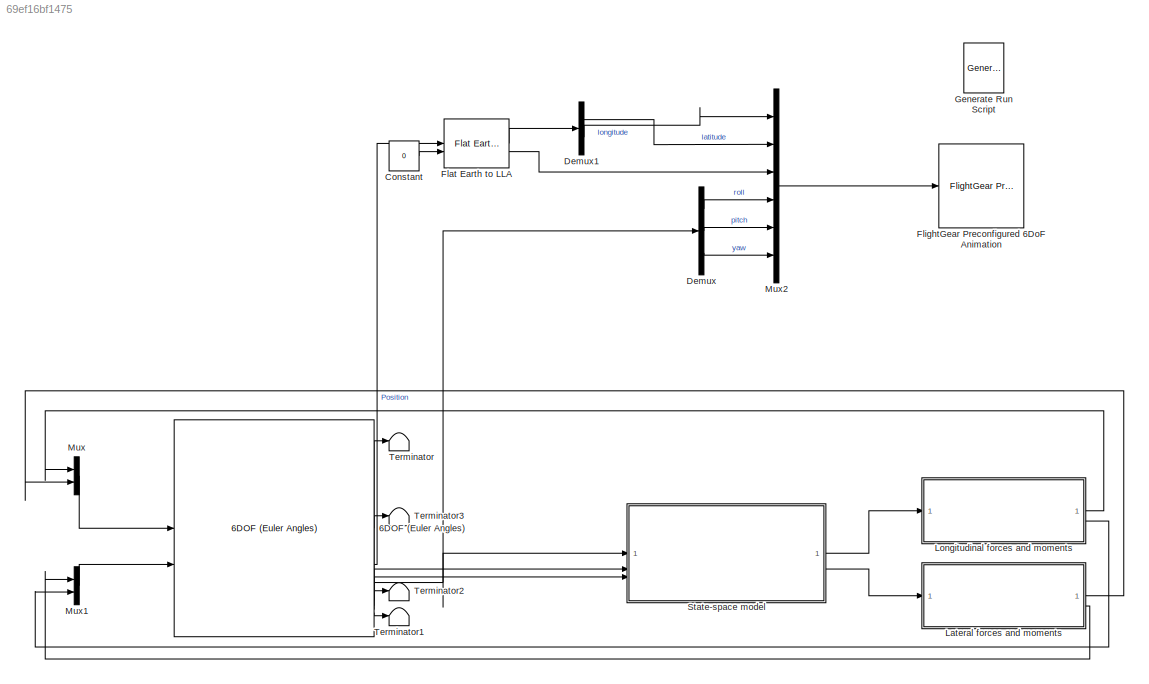
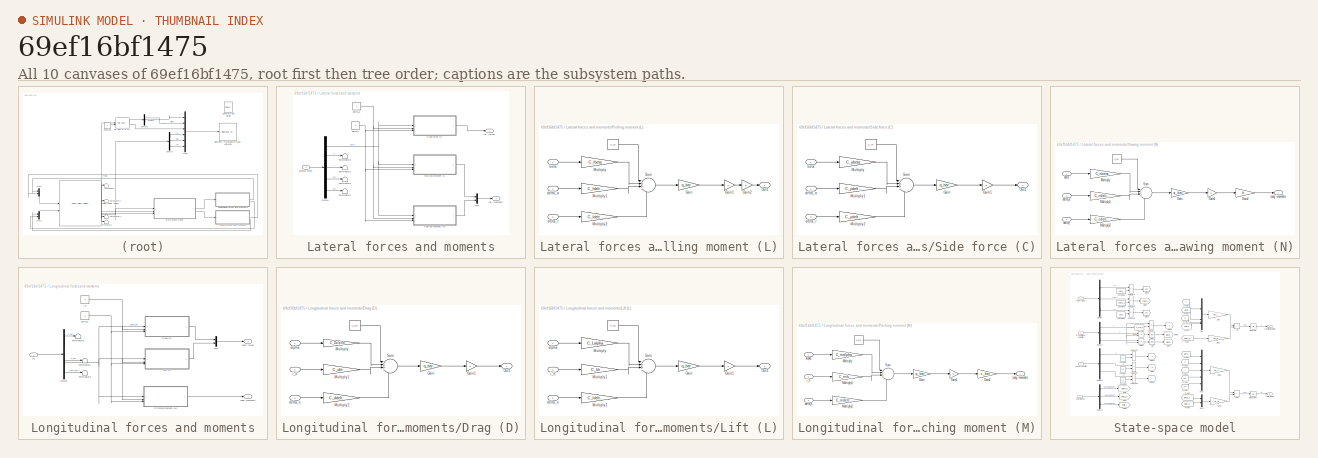
[diagram: thumbnail index - all 10 canvases of the model, root first then tree order]
MODEL slx_69ef16bf1475
KIND model
CONFIG AbsTol = auto
CONFIG EnableMultiTasking = off
CONFIG FixedStep = auto
CONFIG MaxStep = auto
CONFIG MinStep = auto
CONFIG RelTol = 1e-3
CONFIG SampleTimeConstraint = Unconstrained
CONFIG SolverName = VariableStepAuto
CONFIG StartTime = 0.0
CONFIG StopTime = 10.0
WORKSPACE source: external: MAT-File  (data not in archive)
BLOCK [Reference] 6DOF (Euler Angles)  REF=shared6dof/6DOF (Euler Angles)
  LibrarySourceBlock = aerolib6dof2/6DOF (Euler Angles)
  SourceBlock = shared6dof/6DOF (Euler Angles)
  SourceType = 6DOF EoM (Body Axis)
BLOCK [Constant] Constant
  Value = 0
BLOCK [Demux] Demux
  Outputs = 3
BLOCK [Demux] Demux1
  Outputs = 2
BLOCK [Reference] Flat Earth to LLA  REF=aerolibtransform2/Flat Earth to LLA
  SourceBlock = aerolibtransform2/Flat Earth to LLA
  SourceType = Flat Earth to LLA
BLOCK [Reference] FlightGear Preconfigured 6DoF Animation  REF=aerolibfltsims/FlightGear
Preconfigured
6DoF Animation
  SourceBlock = aerolibfltsims/FlightGear\nPreconfigured\n6DoF Animation
  SourceType = FlightGearQuick6DoFAnimation
BLOCK [Reference] Generate Run Script  REF=aerolibfltsims/Generate
Run Script
  SourceBlock = aerolibfltsims/Generate\nRun Script
  SourceType = Generate FlightGear Run Script
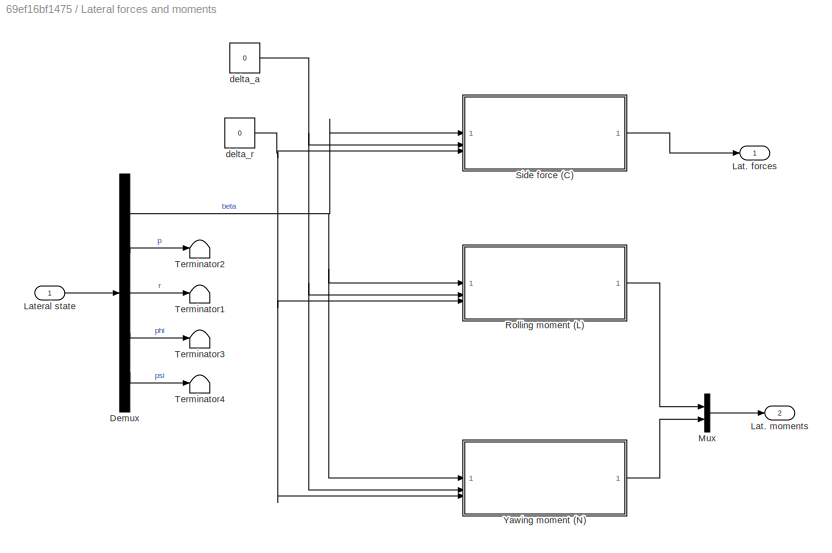
BLOCK [SubSystem] Lateral forces and moments
BLOCK [Demux] Lateral forces and moments/Demux
  Outputs = 5
BLOCK [Outport] Lateral forces and moments/Lat. forces
BLOCK [Outport] Lateral forces and moments/Lat. moments
  Port = 2
BLOCK [Inport] Lateral forces and moments/Lateral state
BLOCK [Mux] Lateral forces and moments/Mux
  DisplayOption = bar
  Inputs = 2
BLOCK [SubSystem] Lateral forces and moments/Rolling moment (L)
BLOCK [Constant] Lateral forces and moments/Rolling moment (L)/ 
  Value = C_L0
BLOCK [Gain] Lateral forces and moments/Rolling moment (L)/Gain
  Gain = q_bar
BLOCK [Gain] Lateral forces and moments/Rolling moment (L)/Gain1
  Gain = S
BLOCK [Gain] Lateral forces and moments/Rolling moment (L)/Gain2
  Gain = b
BLOCK [Gain] Lateral forces and moments/Rolling moment (L)/Multiply
  Gain = C_lbeta
BLOCK [Gain] Lateral forces and moments/Rolling moment (L)/Multiply1
  Gain = C_ldelta_a
BLOCK [Gain] Lateral forces and moments/Rolling moment (L)/Multiply2
  Gain = C_ldelta_r
BLOCK [Outport] Lateral forces and moments/Rolling moment (L)/Out1
BLOCK [Sum] Lateral forces and moments/Rolling moment (L)/Sum
  Inputs = |++++
BLOCK [Inport] Lateral forces and moments/Rolling moment (L)/beta
BLOCK [Inport] Lateral forces and moments/Rolling moment (L)/delta_a
  Port = 2
BLOCK [Inport] Lateral forces and moments/Rolling moment (L)/delta_r
  Port = 3
BLOCK [SubSystem] Lateral forces and moments/Side force (C)
BLOCK [Constant] Lateral forces and moments/Side force (C)/ 
  Value = C_y0
BLOCK [Gain] Lateral forces and moments/Side force (C)/Gain
  Gain = q_bar
BLOCK [Gain] Lateral forces and moments/Side force (C)/Gain1
  Gain = S
BLOCK [Gain] Lateral forces and moments/Side force (C)/Multiply
  Gain = C_ybeta
BLOCK [Gain] Lateral forces and moments/Side force (C)/Multiply1
  Gain = C_ydelta_a
BLOCK [Gain] Lateral forces and moments/Side force (C)/Multiply2
  Gain = C_ydelta_r
BLOCK [Outport] Lateral forces and moments/Side force (C)/Out1
BLOCK [Sum] Lateral forces and moments/Side force (C)/Sum
  Inputs = |++++
BLOCK [Inport] Lateral forces and moments/Side force (C)/beta
BLOCK [Inport] Lateral forces and moments/Side force (C)/delta_a
  Port = 2
BLOCK [Inport] Lateral forces and moments/Side force (C)/delta_r
  Port = 3
BLOCK [Terminator] Lateral forces and moments/Terminator1
BLOCK [Terminator] Lateral forces and moments/Terminator2
BLOCK [Terminator] Lateral forces and moments/Terminator3
BLOCK [Terminator] Lateral forces and moments/Terminator4
BLOCK [SubSystem] Lateral forces and moments/Yawing moment (N)
BLOCK [Constant] Lateral forces and moments/Yawing moment (N)/ 
  Value = C_n0
BLOCK [Gain] Lateral forces and moments/Yawing moment (N)/Gain
  Gain = q_bar
BLOCK [Gain] Lateral forces and moments/Yawing moment (N)/Gain1
  Gain = S
BLOCK [Gain] Lateral forces and moments/Yawing moment (N)/Gain2
  Gain = b
BLOCK [Outport] Lateral forces and moments/Yawing moment (N)/Long. moments
BLOCK [Gain] Lateral forces and moments/Yawing moment (N)/Multiply
  Gain = C_nbeta
BLOCK [Gain] Lateral forces and moments/Yawing moment (N)/Multiply1
  Gain = C_ndelta_a
BLOCK [Gain] Lateral forces and moments/Yawing moment (N)/Multiply2
  Gain = C_ndelta_r
BLOCK [Sum] Lateral forces and moments/Yawing moment (N)/Sum
  Inputs = |++++
BLOCK [Inport] Lateral forces and moments/Yawing moment (N)/beta
BLOCK [Inport] Lateral forces and moments/Yawing moment (N)/delta_a
  Port = 2
BLOCK [Inport] Lateral forces and moments/Yawing moment (N)/delta_r
  Port = 3
BLOCK [Constant] Lateral forces and moments/delta_a
  Value = 0
BLOCK [Constant] Lateral forces and moments/delta_r
  Value = 0
BLOCK [SubSystem] Longitudinal forces and moments
BLOCK [Demux] Longitudinal forces and moments/Demux
BLOCK [SubSystem] Longitudinal forces and moments/Drag (D)
BLOCK [Constant] Longitudinal forces and moments/Drag (D)/ 
  Value = C_D0
BLOCK [Gain] Longitudinal forces and moments/Drag (D)/Gain
  Gain = q_bar
BLOCK [Gain] Longitudinal forces and moments/Drag (D)/Gain1
  Gain = S
BLOCK [Gain] Longitudinal forces and moments/Drag (D)/Multiply
  Gain = C_Dalpha
BLOCK [Gain] Longitudinal forces and moments/Drag (D)/Multiply1
  Gain = C_dih
BLOCK [Gain] Longitudinal forces and moments/Drag (D)/Multiply2
  Gain = C_ddelta_e
BLOCK [Outport] Longitudinal forces and moments/Drag (D)/Out1
BLOCK [Sum] Longitudinal forces and moments/Drag (D)/Sum
  Inputs = |++++
BLOCK [Inport] Longitudinal forces and moments/Drag (D)/alpha
BLOCK [Inport] Longitudinal forces and moments/Drag (D)/delta_e
  Port = 3
BLOCK [Inport] Longitudinal forces and moments/Drag (D)/i_h
  Port = 2
BLOCK [Inport] Longitudinal forces and moments/In1
BLOCK [SubSystem] Longitudinal forces and moments/Lift (L)
BLOCK [Constant] Longitudinal forces and moments/Lift (L)/ 
  Value = C_L0
BLOCK [Gain] Longitudinal forces and moments/Lift (L)/Gain
  Gain = q_bar
BLOCK [Gain] Longitudinal forces and moments/Lift (L)/Gain1
  Gain = S
BLOCK [Gain] Longitudinal forces and moments/Lift (L)/Multiply
  Gain = C_Lalpha
BLOCK [Gain] Longitudinal forces and moments/Lift (L)/Multiply1
  Gain = C_lih
BLOCK [Gain] Longitudinal forces and moments/Lift (L)/Multiply2
  Gain = C_ldelta_e
BLOCK [Outport] Longitudinal forces and moments/Lift (L)/Out1
BLOCK [Sum] Longitudinal forces and moments/Lift (L)/Sum
  Inputs = |++++
BLOCK [Inport] Longitudinal forces and moments/Lift (L)/alpha
BLOCK [Inport] Longitudinal forces and moments/Lift (L)/delta_e
  Port = 3
BLOCK [Inport] Longitudinal forces and moments/Lift (L)/i_h
  Port = 2
BLOCK [Outport] Longitudinal forces and moments/Long. forces
BLOCK [Outport] Longitudinal forces and moments/Long. moments
  Port = 2
BLOCK [Mux] Longitudinal forces and moments/Mux
  DisplayOption = bar
  Inputs = 2
BLOCK [SubSystem] Longitudinal forces and moments/Pitching moment (M)
BLOCK [Constant] Longitudinal forces and moments/Pitching moment (M)/ 
  Value = C_m0
BLOCK [Gain] Longitudinal forces and moments/Pitching moment (M)/Gain
  Gain = q_bar
BLOCK [Gain] Longitudinal forces and moments/Pitching moment (M)/Gain1
  Gain = S
BLOCK [Gain] Longitudinal forces and moments/Pitching moment (M)/Gain2
  Gain = c_bar
BLOCK [Outport] Longitudinal forces and moments/Pitching moment (M)/Long. moments
BLOCK [Gain] Longitudinal forces and moments/Pitching moment (M)/Multiply
  Gain = C_malpha
BLOCK [Gain] Longitudinal forces and moments/Pitching moment (M)/Multiply1
  Gain = C_mih
BLOCK [Gain] Longitudinal forces and moments/Pitching moment (M)/Multiply2
  Gain = C_mdelta_e
BLOCK [Sum] Longitudinal forces and moments/Pitching moment (M)/Sum
  Inputs = |++++
BLOCK [Inport] Longitudinal forces and moments/Pitching moment (M)/alpha
BLOCK [Inport] Longitudinal forces and moments/Pitching moment (M)/delta_e
  Port = 3
BLOCK [Inport] Longitudinal forces and moments/Pitching moment (M)/i_h
  Port = 2
BLOCK [Terminator] Longitudinal forces and moments/Terminator1
BLOCK [Terminator] Longitudinal forces and moments/Terminator2
BLOCK [Terminator] Longitudinal forces and moments/Terminator3
BLOCK [Constant] Longitudinal forces and moments/delta_e
  Value = 0
BLOCK [Constant] Longitudinal forces and moments/i_h
  Value = 0
BLOCK [Mux] Mux
  DisplayOption = bar
  Inputs = 2
BLOCK [Mux] Mux1
  DisplayOption = bar
  Inputs = 2
BLOCK [Mux] Mux2
  DisplayOption = bar
  Inputs = 6
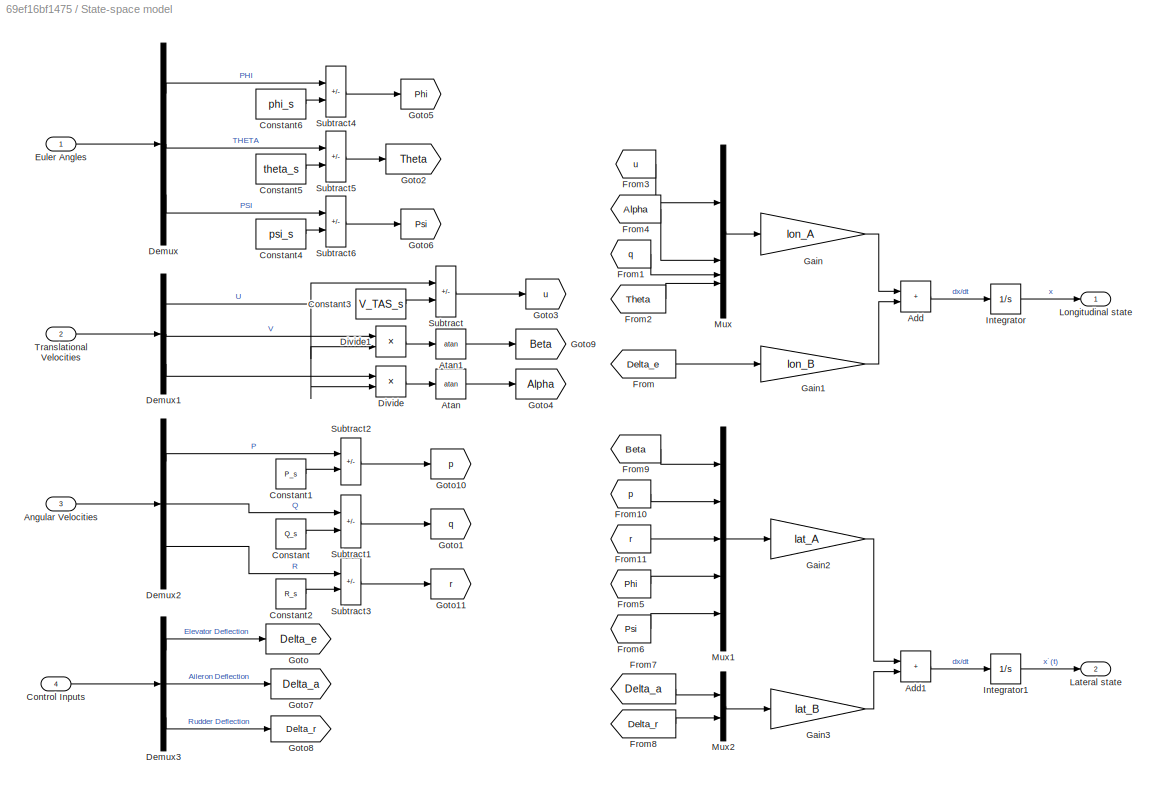
BLOCK [SubSystem] State-space model
BLOCK [Sum] State-space model/Add
  IconShape = rectangular
BLOCK [Sum] State-space model/Add1
  IconShape = rectangular
BLOCK [Inport] State-space model/Angular Velocities
  Port = 3
BLOCK [Trigonometry] State-space model/Atan
  Operator = atan
BLOCK [Trigonometry] State-space model/Atan1
  Operator = atan
BLOCK [Constant] State-space model/Constant
  Value = Q_s
BLOCK [Constant] State-space model/Constant1
  Value = P_s
BLOCK [Constant] State-space model/Constant2
  Value = R_s
BLOCK [Constant] State-space model/Constant3
  Value = V_TAS_s
BLOCK [Constant] State-space model/Constant4
  Value = psi_s
BLOCK [Constant] State-space model/Constant5
  Value = theta_s
BLOCK [Constant] State-space model/Constant6
  Value = phi_s
BLOCK [Inport] State-space model/Control Inputs
  Port = 4
BLOCK [Demux] State-space model/Demux
  Outputs = 3
BLOCK [Demux] State-space model/Demux1
  Outputs = 3
BLOCK [Demux] State-space model/Demux2
  Outputs = 3
BLOCK [Demux] State-space model/Demux3
  Outputs = 3
BLOCK [Product] State-space model/Divide
  Inputs = */
BLOCK [Product] State-space model/Divide1
  Inputs = */
BLOCK [Inport] State-space model/Euler Angles
BLOCK [From] State-space model/From
  GotoTag = Delta_e
BLOCK [From] State-space model/From1
  GotoTag = q
BLOCK [From] State-space model/From10
  GotoTag = p
BLOCK [From] State-space model/From11
  GotoTag = r
BLOCK [From] State-space model/From2
  GotoTag = Theta
BLOCK [From] State-space model/From3
  GotoTag = u
BLOCK [From] State-space model/From4
  GotoTag = Alpha
BLOCK [From] State-space model/From5
  GotoTag = Phi
BLOCK [From] State-space model/From6
  GotoTag = Psi
BLOCK [From] State-space model/From7
  GotoTag = Delta_a
BLOCK [From] State-space model/From8
  GotoTag = Delta_r
BLOCK [From] State-space model/From9
  GotoTag = Beta
BLOCK [Gain] State-space model/Gain
  Gain = lon_A
  Multiplication = Matrix(K*u)
BLOCK [Gain] State-space model/Gain1
  Gain = lon_B
  Multiplication = Matrix(K*u)
BLOCK [Gain] State-space model/Gain2
  Gain = lat_A
  Multiplication = Matrix(K*u)
BLOCK [Gain] State-space model/Gain3
  Gain = lat_B
  Multiplication = Matrix(K*u)
BLOCK [Goto] State-space model/Goto
  GotoTag = Delta_e
BLOCK [Goto] State-space model/Goto1
  GotoTag = q
BLOCK [Goto] State-space model/Goto10
  GotoTag = p
BLOCK [Goto] State-space model/Goto11
  GotoTag = r
BLOCK [Goto] State-space model/Goto2
  GotoTag = Theta
BLOCK [Goto] State-space model/Goto3
  GotoTag = u
BLOCK [Goto] State-space model/Goto4
  GotoTag = Alpha
BLOCK [Goto] State-space model/Goto5
  GotoTag = Phi
BLOCK [Goto] State-space model/Goto6
  GotoTag = Psi
BLOCK [Goto] State-space model/Goto7
  GotoTag = Delta_a
BLOCK [Goto] State-space model/Goto8
  GotoTag = Delta_r
BLOCK [Goto] State-space model/Goto9
  GotoTag = Beta
BLOCK [Integrator] State-space model/Integrator
BLOCK [Integrator] State-space model/Integrator1
BLOCK [Outport] State-space model/Lateral state
  Port = 2
BLOCK [Outport] State-space model/Longitudinal state
BLOCK [Mux] State-space model/Mux
  DisplayOption = bar
BLOCK [Mux] State-space model/Mux1
  DisplayOption = bar
  Inputs = 5
BLOCK [Mux] State-space model/Mux2
  DisplayOption = bar
  Inputs = 2
BLOCK [Sum] State-space model/Subtract
  IconShape = rectangular
  Inputs = +-
BLOCK [Sum] State-space model/Subtract1
  IconShape = rectangular
  Inputs = +-
BLOCK [Sum] State-space model/Subtract2
  IconShape = rectangular
  Inputs = +-
BLOCK [Sum] State-space model/Subtract3
  IconShape = rectangular
  Inputs = +-
BLOCK [Sum] State-space model/Subtract4
  IconShape = rectangular
  Inputs = +-
BLOCK [Sum] State-space model/Subtract5
  IconShape = rectangular
  Inputs = +-
BLOCK [Sum] State-space model/Subtract6
  IconShape = rectangular
  Inputs = +-
BLOCK [Inport] State-space model/Translational Velocities
  Port = 2
BLOCK [Terminator] Terminator
BLOCK [Terminator] Terminator1
BLOCK [Terminator] Terminator2
BLOCK [Terminator] Terminator3
LINE 6DOF (Euler Angles):1 -> Terminator:1
LINE 6DOF (Euler Angles):2 -> Flat Earth to LLA:1
NET 6DOF (Euler Angles):3 -> Demux:1, State-space model:1
LINE 6DOF (Euler Angles):4 -> Terminator3:1
LINE 6DOF (Euler Angles):5 -> State-space model:2
LINE 6DOF (Euler Angles):6 -> State-space model:3
LINE 6DOF (Euler Angles):7 -> Terminator2:1
LINE 6DOF (Euler Angles):8 -> Terminator1:1
LINE Constant:1 -> Flat Earth to LLA:2
LINE Demux1:1 -> Mux2:2
LINE Demux1:2 -> Mux2:1
LINE Demux:1 -> Mux2:4
LINE Demux:2 -> Mux2:5
LINE Demux:3 -> Mux2:6
LINE Flat Earth to LLA:1 -> Demux1:1
LINE Flat Earth to LLA:2 -> Mux2:3
NET Lateral forces and moments/Demux:1 -> Lateral forces and moments/Rolling moment (L):1, Lateral forces and moments/Side force (C):1, Lateral forces and moments/Yawing moment (N):1
LINE Lateral forces and moments/Demux:2 -> Lateral forces and moments/Terminator2:1
LINE Lateral forces and moments/Demux:3 -> Lateral forces and moments/Terminator1:1
LINE Lateral forces and moments/Demux:4 -> Lateral forces and moments/Terminator3:1
LINE Lateral forces and moments/Demux:5 -> Lateral forces and moments/Terminator4:1
LINE Lateral forces and moments/Lateral state:1 -> Lateral forces and moments/Demux:1
LINE Lateral forces and moments/Mux:1 -> Lateral forces and moments/Lat. moments:1
LINE Lateral forces and moments/Rolling moment (L)/ :1 -> Lateral forces and moments/Rolling moment (L)/Sum:1
LINE Lateral forces and moments/Rolling moment (L)/Gain1:1 -> Lateral forces and moments/Rolling moment (L)/Gain2:1
LINE Lateral forces and moments/Rolling moment (L)/Gain2:1 -> Lateral forces and moments/Rolling moment (L)/Out1:1
LINE Lateral forces and moments/Rolling moment (L)/Gain:1 -> Lateral forces and moments/Rolling moment (L)/Gain1:1
LINE Lateral forces and moments/Rolling moment (L)/Multiply1:1 -> Lateral forces and moments/Rolling moment (L)/Sum:3
LINE Lateral forces and moments/Rolling moment (L)/Multiply2:1 -> Lateral forces and moments/Rolling moment (L)/Sum:4
LINE Lateral forces and moments/Rolling moment (L)/Multiply:1 -> Lateral forces and moments/Rolling moment (L)/Sum:2
LINE Lateral forces and moments/Rolling moment (L)/Sum:1 -> Lateral forces and moments/Rolling moment (L)/Gain:1
LINE Lateral forces and moments/Rolling moment (L)/beta:1 -> Lateral forces and moments/Rolling moment (L)/Multiply:1
LINE Lateral forces and moments/Rolling moment (L)/delta_a:1 -> Lateral forces and moments/Rolling moment (L)/Multiply1:1
LINE Lateral forces and moments/Rolling moment (L)/delta_r:1 -> Lateral forces and moments/Rolling moment (L)/Multiply2:1
LINE Lateral forces and moments/Rolling moment (L):1 -> Lateral forces and moments/Mux:1
LINE Lateral forces and moments/Side force (C)/ :1 -> Lateral forces and moments/Side force (C)/Sum:1
LINE Lateral forces and moments/Side force (C)/Gain1:1 -> Lateral forces and moments/Side force (C)/Out1:1
LINE Lateral forces and moments/Side force (C)/Gain:1 -> Lateral forces and moments/Side force (C)/Gain1:1
LINE Lateral forces and moments/Side force (C)/Multiply1:1 -> Lateral forces and moments/Side force (C)/Sum:3
LINE Lateral forces and moments/Side force (C)/Multiply2:1 -> Lateral forces and moments/Side force (C)/Sum:4
LINE Lateral forces and moments/Side force (C)/Multiply:1 -> Lateral forces and moments/Side force (C)/Sum:2
LINE Lateral forces and moments/Side force (C)/Sum:1 -> Lateral forces and moments/Side force (C)/Gain:1
LINE Lateral forces and moments/Side force (C)/beta:1 -> Lateral forces and moments/Side force (C)/Multiply:1
LINE Lateral forces and moments/Side force (C)/delta_a:1 -> Lateral forces and moments/Side force (C)/Multiply1:1
LINE Lateral forces and moments/Side force (C)/delta_r:1 -> Lateral forces and moments/Side force (C)/Multiply2:1
LINE Lateral forces and moments/Side force (C):1 -> Lateral forces and moments/Lat. forces:1
LINE Lateral forces and moments/Yawing moment (N)/ :1 -> Lateral forces and moments/Yawing moment (N)/Sum:1
LINE Lateral forces and moments/Yawing moment (N)/Gain1:1 -> Lateral forces and moments/Yawing moment (N)/Gain2:1
LINE Lateral forces and moments/Yawing moment (N)/Gain2:1 -> Lateral forces and moments/Yawing moment (N)/Long. moments:1
LINE Lateral forces and moments/Yawing moment (N)/Gain:1 -> Lateral forces and moments/Yawing moment (N)/Gain1:1
LINE Lateral forces and moments/Yawing moment (N)/Multiply1:1 -> Lateral forces and moments/Yawing moment (N)/Sum:3
LINE Lateral forces and moments/Yawing moment (N)/Multiply2:1 -> Lateral forces and moments/Yawing moment (N)/Sum:4
LINE Lateral forces and moments/Yawing moment (N)/Multiply:1 -> Lateral forces and moments/Yawing moment (N)/Sum:2
LINE Lateral forces and moments/Yawing moment (N)/Sum:1 -> Lateral forces and moments/Yawing moment (N)/Gain:1
LINE Lateral forces and moments/Yawing moment (N)/beta:1 -> Lateral forces and moments/Yawing moment (N)/Multiply:1
LINE Lateral forces and moments/Yawing moment (N)/delta_a:1 -> Lateral forces and moments/Yawing moment (N)/Multiply1:1
LINE Lateral forces and moments/Yawing moment (N)/delta_r:1 -> Lateral forces and moments/Yawing moment (N)/Multiply2:1
LINE Lateral forces and moments/Yawing moment (N):1 -> Lateral forces and moments/Mux:2
NET Lateral forces and moments/delta_a:1 -> Lateral forces and moments/Rolling moment (L):2, Lateral forces and moments/Side force (C):2, Lateral forces and moments/Yawing moment (N):2
NET Lateral forces and moments/delta_r:1 -> Lateral forces and moments/Rolling moment (L):3, Lateral forces and moments/Side force (C):3, Lateral forces and moments/Yawing moment (N):3
LINE Lateral forces and moments:1 -> Mux:2
LINE Lateral forces and moments:2 -> Mux1:1
LINE Longitudinal forces and moments/Demux:1 -> Longitudinal forces and moments/Terminator2:1
NET Longitudinal forces and moments/Demux:2 -> Longitudinal forces and moments/Drag (D):1, Longitudinal forces and moments/Lift (L):1, Longitudinal forces and moments/Pitching moment (M):1
LINE Longitudinal forces and moments/Demux:3 -> Longitudinal forces and moments/Terminator1:1
LINE Longitudinal forces and moments/Demux:4 -> Longitudinal forces and moments/Terminator3:1
LINE Longitudinal forces and moments/Drag (D)/ :1 -> Longitudinal forces and moments/Drag (D)/Sum:1
LINE Longitudinal forces and moments/Drag (D)/Gain1:1 -> Longitudinal forces and moments/Drag (D)/Out1:1
LINE Longitudinal forces and moments/Drag (D)/Gain:1 -> Longitudinal forces and moments/Drag (D)/Gain1:1
LINE Longitudinal forces and moments/Drag (D)/Multiply1:1 -> Longitudinal forces and moments/Drag (D)/Sum:3
LINE Longitudinal forces and moments/Drag (D)/Multiply2:1 -> Longitudinal forces and moments/Drag (D)/Sum:4
LINE Longitudinal forces and moments/Drag (D)/Multiply:1 -> Longitudinal forces and moments/Drag (D)/Sum:2
LINE Longitudinal forces and moments/Drag (D)/Sum:1 -> Longitudinal forces and moments/Drag (D)/Gain:1
LINE Longitudinal forces and moments/Drag (D)/alpha:1 -> Longitudinal forces and moments/Drag (D)/Multiply:1
LINE Longitudinal forces and moments/Drag (D)/delta_e:1 -> Longitudinal forces and moments/Drag (D)/Multiply2:1
LINE Longitudinal forces and moments/Drag (D)/i_h:1 -> Longitudinal forces and moments/Drag (D)/Multiply1:1
LINE Longitudinal forces and moments/Drag (D):1 -> Longitudinal forces and moments/Mux:1
LINE Longitudinal forces and moments/In1:1 -> Longitudinal forces and moments/Demux:1
LINE Longitudinal forces and moments/Lift (L)/ :1 -> Longitudinal forces and moments/Lift (L)/Sum:1
LINE Longitudinal forces and moments/Lift (L)/Gain1:1 -> Longitudinal forces and moments/Lift (L)/Out1:1
LINE Longitudinal forces and moments/Lift (L)/Gain:1 -> Longitudinal forces and moments/Lift (L)/Gain1:1
LINE Longitudinal forces and moments/Lift (L)/Multiply1:1 -> Longitudinal forces and moments/Lift (L)/Sum:3
LINE Longitudinal forces and moments/Lift (L)/Multiply2:1 -> Longitudinal forces and moments/Lift (L)/Sum:4
LINE Longitudinal forces and moments/Lift (L)/Multiply:1 -> Longitudinal forces and moments/Lift (L)/Sum:2
LINE Longitudinal forces and moments/Lift (L)/Sum:1 -> Longitudinal forces and moments/Lift (L)/Gain:1
LINE Longitudinal forces and moments/Lift (L)/alpha:1 -> Longitudinal forces and moments/Lift (L)/Multiply:1
LINE Longitudinal forces and moments/Lift (L)/delta_e:1 -> Longitudinal forces and moments/Lift (L)/Multiply2:1
LINE Longitudinal forces and moments/Lift (L)/i_h:1 -> Longitudinal forces and moments/Lift (L)/Multiply1:1
LINE Longitudinal forces and moments/Lift (L):1 -> Longitudinal forces and moments/Mux:2
LINE Longitudinal forces and moments/Mux:1 -> Longitudinal forces and moments/Long. forces:1
LINE Longitudinal forces and moments/Pitching moment (M)/ :1 -> Longitudinal forces and moments/Pitching moment (M)/Sum:1
LINE Longitudinal forces and moments/Pitching moment (M)/Gain1:1 -> Longitudinal forces and moments/Pitching moment (M)/Gain2:1
LINE Longitudinal forces and moments/Pitching moment (M)/Gain2:1 -> Longitudinal forces and moments/Pitching moment (M)/Long. moments:1
LINE Longitudinal forces and moments/Pitching moment (M)/Gain:1 -> Longitudinal forces and moments/Pitching moment (M)/Gain1:1
LINE Longitudinal forces and moments/Pitching moment (M)/Multiply1:1 -> Longitudinal forces and moments/Pitching moment (M)/Sum:3
LINE Longitudinal forces and moments/Pitching moment (M)/Multiply2:1 -> Longitudinal forces and moments/Pitching moment (M)/Sum:4
LINE Longitudinal forces and moments/Pitching moment (M)/Multiply:1 -> Longitudinal forces and moments/Pitching moment (M)/Sum:2
LINE Longitudinal forces and moments/Pitching moment (M)/Sum:1 -> Longitudinal forces and moments/Pitching moment (M)/Gain:1
LINE Longitudinal forces and moments/Pitching moment (M)/alpha:1 -> Longitudinal forces and moments/Pitching moment (M)/Multiply:1
LINE Longitudinal forces and moments/Pitching moment (M)/delta_e:1 -> Longitudinal forces and moments/Pitching moment (M)/Multiply2:1
LINE Longitudinal forces and moments/Pitching moment (M)/i_h:1 -> Longitudinal forces and moments/Pitching moment (M)/Multiply1:1
LINE Longitudinal forces and moments/Pitching moment (M):1 -> Longitudinal forces and moments/Long. moments:1
NET Longitudinal forces and moments/delta_e:1 -> Longitudinal forces and moments/Drag (D):3, Longitudinal forces and moments/Lift (L):3, Longitudinal forces and moments/Pitching moment (M):3
NET Longitudinal forces and moments/i_h:1 -> Longitudinal forces and moments/Drag (D):2, Longitudinal forces and moments/Lift (L):2, Longitudinal forces and moments/Pitching moment (M):2
LINE Longitudinal forces and moments:1 -> Mux:1
LINE Longitudinal forces and moments:2 -> Mux1:2
LINE Mux1:1 -> 6DOF (Euler Angles):2
LINE Mux2:1 -> FlightGear Preconfigured 6DoF Animation:1
LINE Mux:1 -> 6DOF (Euler Angles):1
LINE State-space model/Add1:1 -> State-space model/Integrator1:1
LINE State-space model/Add:1 -> State-space model/Integrator:1
LINE State-space model/Angular Velocities:1 -> State-space model/Demux2:1
LINE State-space model/Atan1:1 -> State-space model/Goto9:1
LINE State-space model/Atan:1 -> State-space model/Goto4:1
LINE State-space model/Constant1:1 -> State-space model/Subtract2:2
LINE State-space model/Constant2:1 -> State-space model/Subtract3:2
LINE State-space model/Constant3:1 -> State-space model/Subtract:2
LINE State-space model/Constant4:1 -> State-space model/Subtract6:2
LINE State-space model/Constant5:1 -> State-space model/Subtract5:2
LINE State-space model/Constant6:1 -> State-space model/Subtract4:2
LINE State-space model/Constant:1 -> State-space model/Subtract1:2
LINE State-space model/Control Inputs:1 -> State-space model/Demux3:1
NET State-space model/Demux1:1 -> State-space model/Divide1:2, State-space model/Divide:2, State-space model/Subtract:1
LINE State-space model/Demux1:2 -> State-space model/Divide1:1
LINE State-space model/Demux1:3 -> State-space model/Divide:1
LINE State-space model/Demux2:1 -> State-space model/Subtract2:1
LINE State-space model/Demux2:2 -> State-space model/Subtract1:1
LINE State-space model/Demux2:3 -> State-space model/Subtract3:1
LINE State-space model/Demux3:1 -> State-space model/Goto:1
LINE State-space model/Demux3:2 -> State-space model/Goto7:1
LINE State-space model/Demux3:3 -> State-space model/Goto8:1
LINE State-space model/Demux:1 -> State-space model/Subtract4:1
LINE State-space model/Demux:2 -> State-space model/Subtract5:1
LINE State-space model/Demux:3 -> State-space model/Subtract6:1
LINE State-space model/Divide1:1 -> State-space model/Atan1:1
LINE State-space model/Divide:1 -> State-space model/Atan:1
LINE State-space model/Euler Angles:1 -> State-space model/Demux:1
LINE State-space model/From10:1 -> State-space model/Mux1:2
LINE State-space model/From11:1 -> State-space model/Mux1:3
LINE State-space model/From1:1 -> State-space model/Mux:3
LINE State-space model/From2:1 -> State-space model/Mux:4
LINE State-space model/From3:1 -> State-space model/Mux:1
LINE State-space model/From4:1 -> State-space model/Mux:2
LINE State-space model/From5:1 -> State-space model/Mux1:4
LINE State-space model/From6:1 -> State-space model/Mux1:5
LINE State-space model/From7:1 -> State-space model/Mux2:1
LINE State-space model/From8:1 -> State-space model/Mux2:2
LINE State-space model/From9:1 -> State-space model/Mux1:1
LINE State-space model/From:1 -> State-space model/Gain1:1
LINE State-space model/Gain1:1 -> State-space model/Add:2
LINE State-space model/Gain2:1 -> State-space model/Add1:1
LINE State-space model/Gain3:1 -> State-space model/Add1:2
LINE State-space model/Gain:1 -> State-space model/Add:1
LINE State-space model/Integrator1:1 -> State-space model/Lateral state:1
LINE State-space model/Integrator:1 -> State-space model/Longitudinal state:1
LINE State-space model/Mux1:1 -> State-space model/Gain2:1
LINE State-space model/Mux2:1 -> State-space model/Gain3:1
LINE State-space model/Mux:1 -> State-space model/Gain:1
LINE State-space model/Subtract1:1 -> State-space model/Goto1:1
LINE State-space model/Subtract2:1 -> State-space model/Goto10:1
LINE State-space model/Subtract3:1 -> State-space model/Goto11:1
LINE State-space model/Subtract4:1 -> State-space model/Goto5:1
LINE State-space model/Subtract5:1 -> State-space model/Goto2:1
LINE State-space model/Subtract6:1 -> State-space model/Goto6:1
LINE State-space model/Subtract:1 -> State-space model/Goto3:1
LINE State-space model/Translational Velocities:1 -> State-space model/Demux1:1
LINE State-space model:1 -> Longitudinal forces and moments:1
LINE State-space model:2 -> Lateral forces and moments:1
note: NET lines group one-source signal fan-out (src -> all destinations, sorted); 1:1 wires keep LINE
